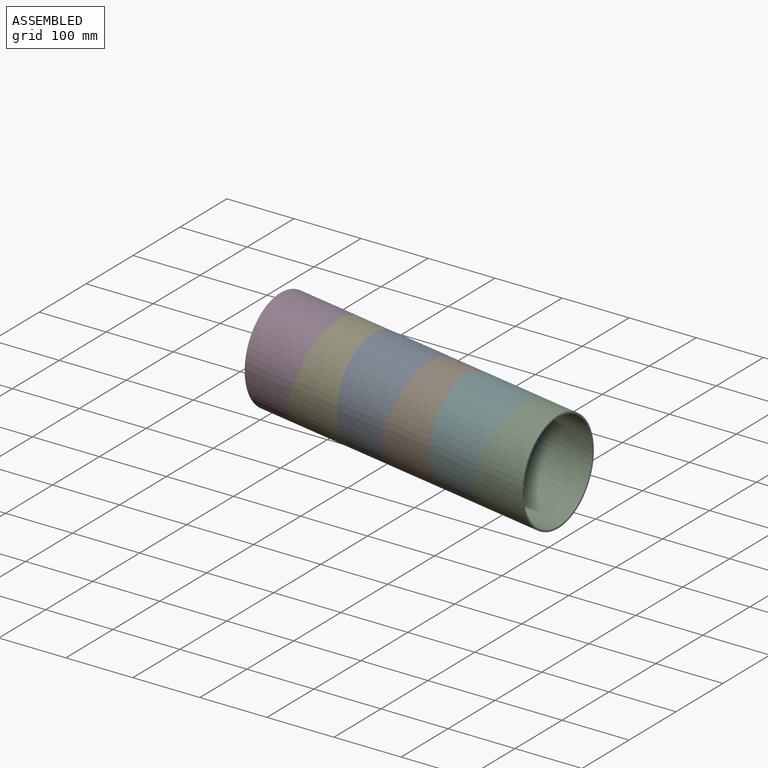
[diagram: assembled view]
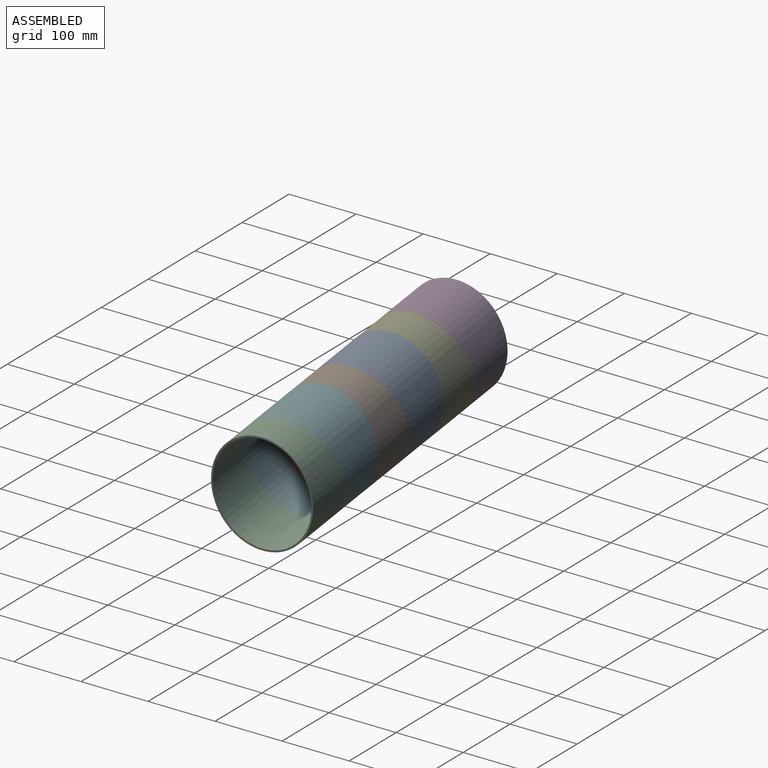
[diagram: assembled view, second angle]
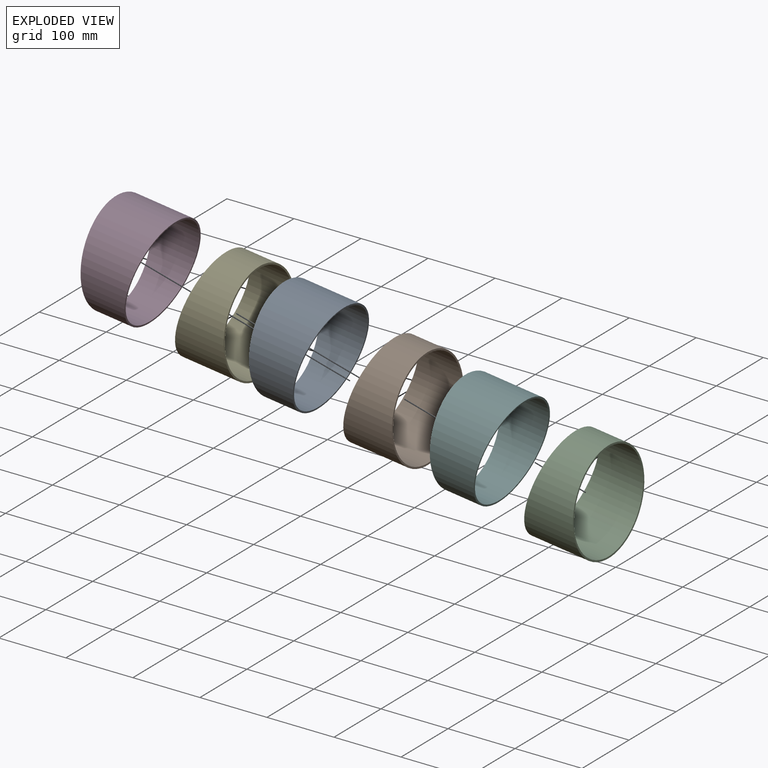
[diagram: exploded view]
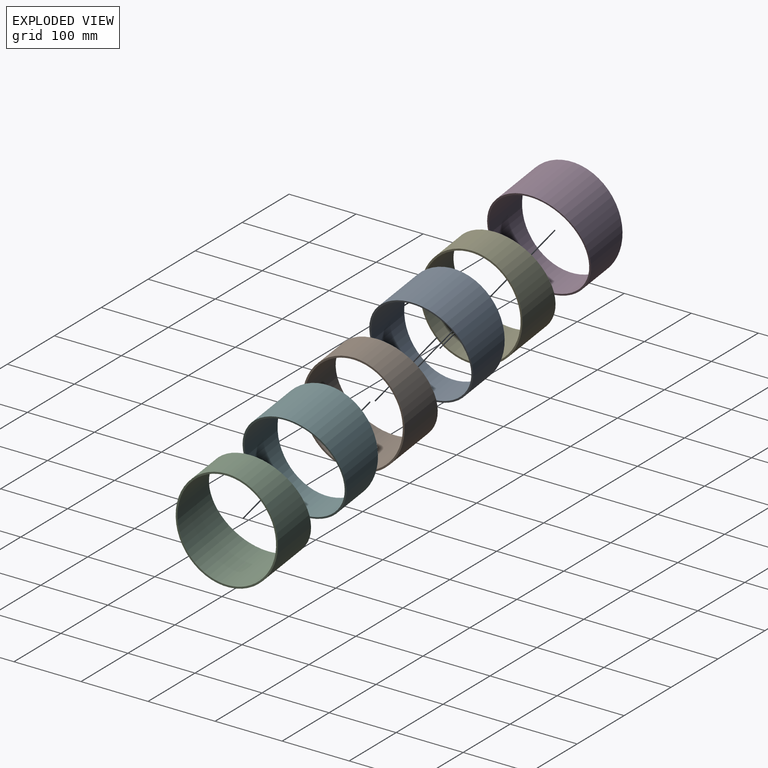
[diagram: exploded view, second angle]
ASSEMBLY  parts=6 mates=5
PART A: 4 faces, bbox 770.2x839.3x1033.5 mm
  f0: plane 763.47x758.28mm, normal (0.97,0,-0.26), area 1198.2mm2, adj f2,f3
  f1: plane 763.47x763.47mm, normal (-1,0,0), area 1198.1mm2, adj f2,f3
  f2: bspline ~159.04x152.4mm, area 33191.3mm2, adj f0,f1
  f3: offset ~427.4x229mm, area 70457mm2, adj f0,f1
PART B: 4 faces, bbox 770.1x839.3x1033.6 mm
  f0: plane 763.47x758.28mm, normal (-0.97,0,0.26), area 1198.1mm2, adj f2,f3
  f1: plane 763.46x763.46mm, normal (1,0,0), area 1198.2mm2, adj f2,f3
  f2: bspline ~158.97x152.4mm, area 33191.3mm2, adj f0,f1
  f3: offset ~427.39x229mm, area 70458.8mm2, adj f0,f1
PART C: same geometry as B
PART D: same geometry as A
PART E: same geometry as B
PART F: same geometry as A
PLACE A t=(138.05,0,-18.18)mm
PLACE B t=(207.08,0,-27.26)mm
PLACE C t=(345.14,0,-45.44)mm
PLACE D at identity fixed
PLACE E t=(69.03,0,-9.09)mm
PLACE F t=(276.11,0,-36.35)mm
MATE revolute F.f1 <-> B.f1  axis (1,0,0) through (276.11,0,-36.35)mm
MATE revolute A.f1 <-> E.f1  axis (1,0,0) through (138.05,0,-18.18)mm
MATE revolute C.f0 <-> F.f0  axis (0.97,0,-0.26) through (345.14,0,-45.44)mm
MATE revolute B.f0 <-> A.f0  axis (0.97,0,-0.26) through (207.08,0,-27.26)mm
MATE revolute E.f0 <-> D.f0  axis (0.97,0,-0.26) through (69.03,0,-9.09)mm
